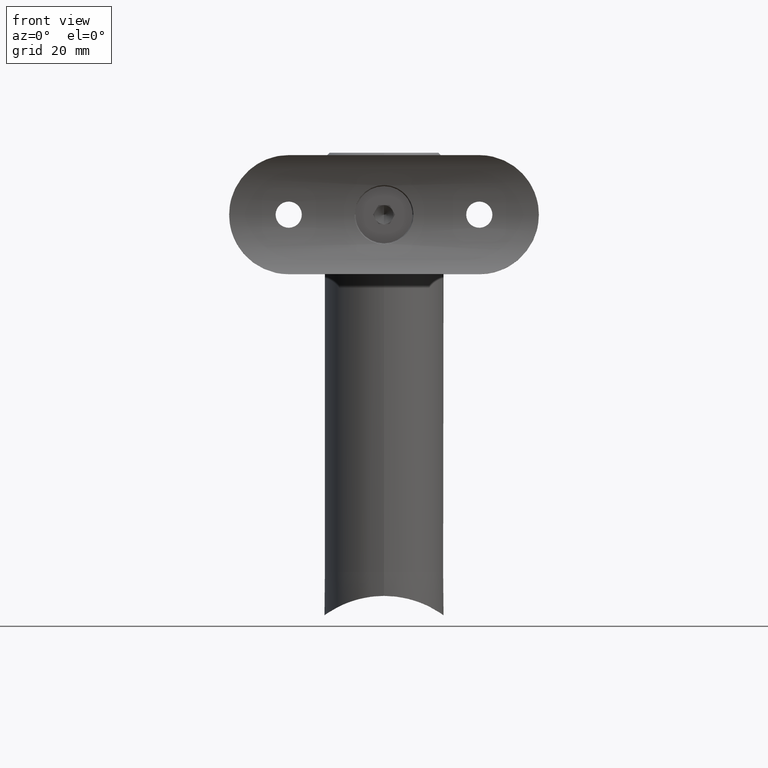
[diagram: clean part render]
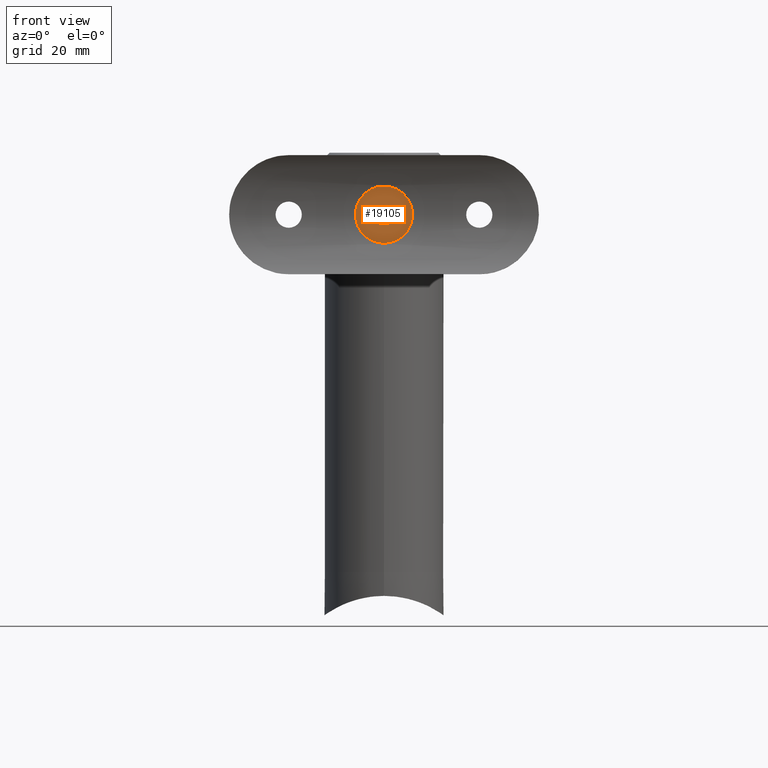
[diagram: same view with one face highlighted and labeled with its STEP entity id]
A machine part, front view. The second image highlights one B-rep face of the part: STEP entity #19105.
In plain terms, the highlighted planar face has unit normal (0, -1, 0).
Its self-contained STEP definition (entity closure, byte-faithful):
#502 = VERTEX_POINT ( 'NONE', #954 ) ;
#666 = AXIS2_PLACEMENT_3D ( 'NONE', #11385, #3602, #1949 ) ;
#922 = CIRCLE ( 'NONE', #666, 6.000000000000000000 ) ;
#945 = CARTESIAN_POINT ( 'NONE',  ( -1.154700538379251462, -2.000000000000000000, 0.000000000000000000 ) ) ;
#954 = CARTESIAN_POINT ( 'NONE',  ( 1.154700538379250796, -2.000000000000000000, -0.000000000000000000 ) ) ;
#1628 = VERTEX_POINT ( 'NONE', #17200 ) ;
#1664 = VERTEX_POINT ( 'NONE', #2995 ) ;
#1744 = EDGE_CURVE ( 'NONE', #18783, #1664, #18503, .T. ) ;
#1949 = DIRECTION ( 'NONE',  ( 0.000000000000000000, 1.000000000000000000, 1.224646799147353700E-16 ) ) ;
#2012 = EDGE_CURVE ( 'NONE', #1628, #502, #4969, .T. ) ;
#2102 = DIRECTION ( 'NONE',  ( -0.4999999999999997780, 0.8660254037844387076, 0.000000000000000000 ) ) ;
#2483 = VERTEX_POINT ( 'NONE', #13026 ) ;
#2995 = CARTESIAN_POINT ( 'NONE',  ( 1.154700538379251684, 1.999999999999999556, 0.000000000000000000 ) ) ;
#3008 = VERTEX_POINT ( 'NONE', #6395 ) ;
#3234 = DIRECTION ( 'NONE',  ( -0.000000000000000000, 1.224646799147353454E-16, -1.000000000000000000 ) ) ;
#3273 = VERTEX_POINT ( 'NONE', #945 ) ;
#3346 = DIRECTION ( 'NONE',  ( -1.000000000000000000, 0.000000000000000000, 0.000000000000000000 ) ) ;
#3397 = CARTESIAN_POINT ( 'NONE',  ( -1.154700538379251462, -2.000000000000000000, 0.000000000000000000 ) ) ;
#3602 = DIRECTION ( 'NONE',  ( -0.000000000000000000, 1.224646799147353454E-16, -1.000000000000000000 ) ) ;
#3644 = LINE ( 'NONE', #18496, #10035 ) ;
#4072 = ORIENTED_EDGE ( 'NONE', *, *, #13767, .T. ) ;
#4534 = DIRECTION ( 'NONE',  ( 0.000000000000000000, 1.000000000000000000, 1.224646799147353700E-16 ) ) ;
#4910 = CARTESIAN_POINT ( 'NONE',  ( -2.309401076758502924, 8.267202313460732093E-16, 0.000000000000000000 ) ) ;
#4969 = LINE ( 'NONE', #6869, #8189 ) ;
#5034 = VECTOR ( 'NONE', #2102, 1000.000000000000114 ) ;
#5120 = VERTEX_POINT ( 'NONE', #6318 ) ;
#5143 = FACE_BOUND ( 'NONE', #9905, .T. ) ;
#5308 = ORIENTED_EDGE ( 'NONE', *, *, #7813, .F. ) ;
#5549 = ORIENTED_EDGE ( 'NONE', *, *, #2012, .F. ) ;
#5815 = DIRECTION ( 'NONE',  ( 0.000000000000000000, 1.000000000000000000, 1.224646799147353454E-16 ) ) ;
#6318 = CARTESIAN_POINT ( 'NONE',  ( 0.000000000000000000, 6.000000000000000000, -4.898587196589412829E-16 ) ) ;
#6395 = CARTESIAN_POINT ( 'NONE',  ( 7.347880794884119736E-16, -6.000000000000000000, -1.959434878635765526E-15 ) ) ;
#6869 = CARTESIAN_POINT ( 'NONE',  ( 2.309401076758502924, 4.792129444551933447E-16, 0.000000000000000000 ) ) ;
#7477 = DIRECTION ( 'NONE',  ( -0.000000000000000000, 1.224646799147353454E-16, -1.000000000000000000 ) ) ;
#7523 = LINE ( 'NONE', #3397, #5034 ) ;
#7717 = ORIENTED_EDGE ( 'NONE', *, *, #1744, .F. ) ;
#7813 = EDGE_CURVE ( 'NONE', #1664, #1628, #3644, .T. ) ;
#8189 = VECTOR ( 'NONE', #9925, 1000.000000000000114 ) ;
#8374 = VECTOR ( 'NONE', #19250, 1000.000000000000114 ) ;
#8601 = EDGE_CURVE ( 'NONE', #3008, #5120, #922, .T. ) ;
#9343 = CARTESIAN_POINT ( 'NONE',  ( 0.000000000000000000, 1.499759782661858265E-31, -1.224646799147353454E-15 ) ) ;
#9905 = EDGE_LOOP ( 'NONE', ( #10752, #11907, #5549, #5308, #7717, #17336 ) ) ;
#9925 = DIRECTION ( 'NONE',  ( -0.5000000000000001110, -0.8660254037844385966, -0.000000000000000000 ) ) ;
#10035 = VECTOR ( 'NONE', #10643, 1000.000000000000114 ) ;
#10096 = EDGE_LOOP ( 'NONE', ( #4072, #14757 ) ) ;
#10284 = CARTESIAN_POINT ( 'NONE',  ( 0.000000000000000000, 6.000000000000000000, 1.224646799147354440E-16 ) ) ;
#10643 = DIRECTION ( 'NONE',  ( 0.5000000000000001110, -0.8660254037844385966, 0.000000000000000000 ) ) ;
#10752 = ORIENTED_EDGE ( 'NONE', *, *, #11542, .F. ) ;
#11361 = CARTESIAN_POINT ( 'NONE',  ( -1.154700538379250796, 2.000000000000000000, 0.000000000000000000 ) ) ;
#11385 = CARTESIAN_POINT ( 'NONE',  ( 0.000000000000000000, 1.499759782661858265E-31, -1.224646799147353454E-15 ) ) ;
#11542 = EDGE_CURVE ( 'NONE', #3273, #2483, #7523, .T. ) ;
#11585 = LINE ( 'NONE', #4910, #8374 ) ;
#11907 = ORIENTED_EDGE ( 'NONE', *, *, #17864, .F. ) ;
#12584 = DIRECTION ( 'NONE',  ( 1.000000000000000000, -1.877893248421449775E-16, 0.000000000000000000 ) ) ;
#13026 = CARTESIAN_POINT ( 'NONE',  ( -2.309401076758502480, 1.734723475976807094E-15, -6.123233995736766282E-16 ) ) ;
#13767 = EDGE_CURVE ( 'NONE', #5120, #3008, #17586, .T. ) ;
#14125 = AXIS2_PLACEMENT_3D ( 'NONE', #9343, #3234, #4534 ) ;
#14757 = ORIENTED_EDGE ( 'NONE', *, *, #8601, .T. ) ;
#14825 = AXIS2_PLACEMENT_3D ( 'NONE', #10284, #7477, #5815 ) ;
#16511 = LINE ( 'NONE', #17610, #18952 ) ;
#16512 = PLANE ( 'NONE',  #14825 ) ;
#17200 = CARTESIAN_POINT ( 'NONE',  ( 2.309401076758502924, 4.792129444551933447E-16, 0.000000000000000000 ) ) ;
#17336 = ORIENTED_EDGE ( 'NONE', *, *, #17844, .F. ) ;
#17537 = VECTOR ( 'NONE', #12584, 1000.000000000000000 ) ;
#17586 = CIRCLE ( 'NONE', #14125, 6.000000000000000000 ) ;
#17610 = CARTESIAN_POINT ( 'NONE',  ( 1.154700538379250796, -2.000000000000000000, -0.000000000000000000 ) ) ;
#17622 = CARTESIAN_POINT ( 'NONE',  ( -1.154700538379250796, 2.000000000000000000, 0.000000000000000000 ) ) ;
#17728 = FACE_OUTER_BOUND ( 'NONE', #10096, .T. ) ;
#17844 = EDGE_CURVE ( 'NONE', #2483, #18783, #11585, .T. ) ;
#17864 = EDGE_CURVE ( 'NONE', #502, #3273, #16511, .T. ) ;
#18496 = CARTESIAN_POINT ( 'NONE',  ( 1.154700538379251684, 1.999999999999999556, 0.000000000000000000 ) ) ;
#18503 = LINE ( 'NONE', #17622, #17537 ) ;
#18783 = VERTEX_POINT ( 'NONE', #11361 ) ;
#18952 = VECTOR ( 'NONE', #3346, 1000.000000000000000 ) ;
#19105 = ADVANCED_FACE ( 'NONE', ( #5143, #17728 ), #16512, .T. ) ;
#19250 = DIRECTION ( 'NONE',  ( 0.5000000000000003331, 0.8660254037844384856, 0.000000000000000000 ) ) ;